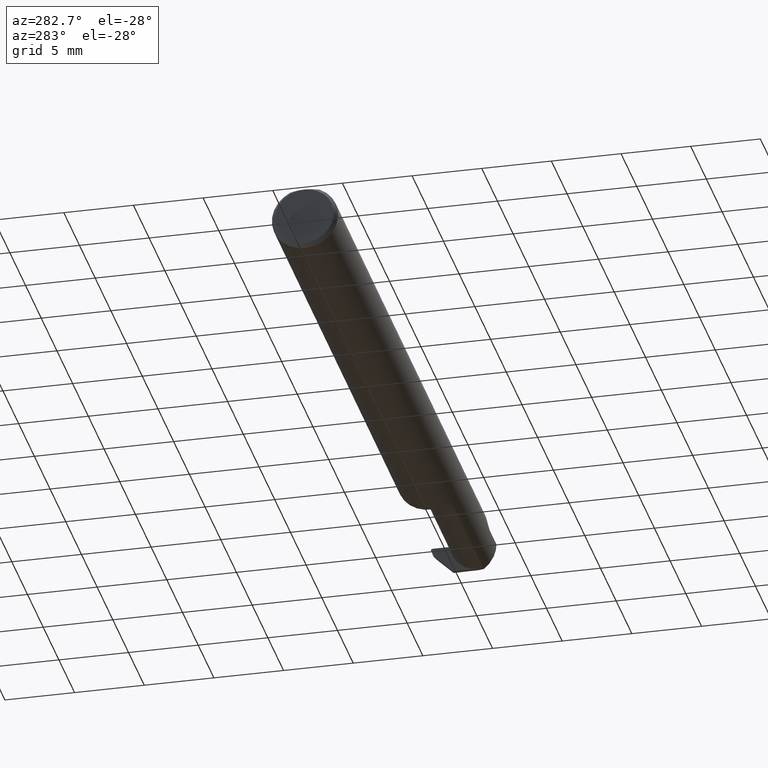
[diagram: clean part render]
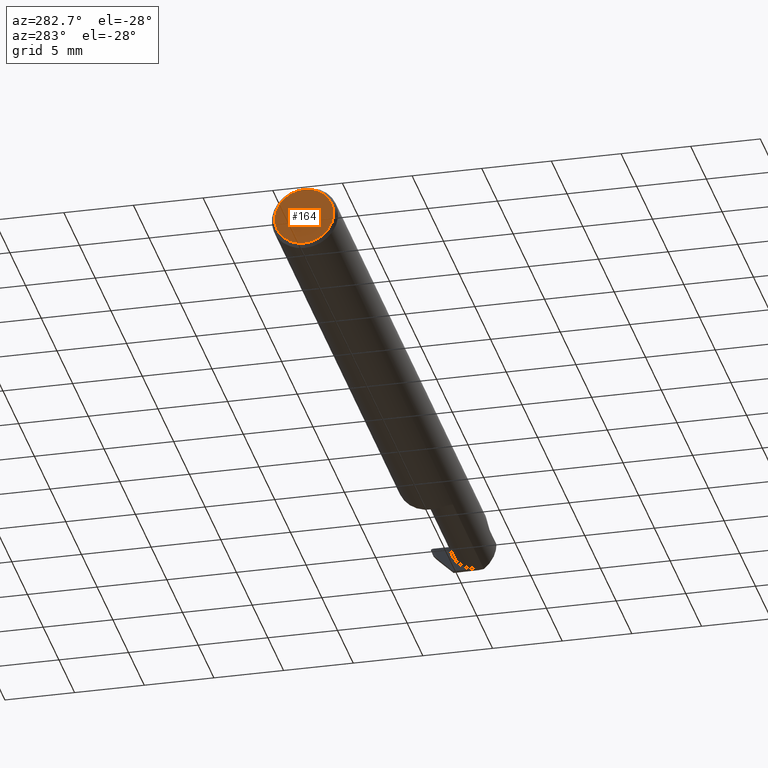
[diagram: same view with one face highlighted and labeled with its STEP entity id]
A machine part, auxiliary view. The second image highlights one B-rep face of the part: STEP entity #164.
In plain terms, the highlighted planar face has unit normal (1, 0, 0).
Its self-contained STEP definition (entity closure, byte-faithful):
#83 = DIRECTION ( 'NONE',  ( 0.000000000000000000, 0.000000000000000000, -1.000000000000000000 ) ) ;
#94 = DIRECTION ( 'NONE',  ( -1.000000000000000000, -0.000000000000000000, -0.000000000000000000 ) ) ;
#164 = ADVANCED_FACE ( 'NONE', ( #448 ), #507, .F. ) ;
#171 = AXIS2_PLACEMENT_3D ( 'NONE', #382, #693, #196 ) ;
#196 = DIRECTION ( 'NONE',  ( 0.000000000000000000, 0.000000000000000000, -1.000000000000000000 ) ) ;
#217 = CARTESIAN_POINT ( 'NONE',  ( 0.000000000000000000, 0.000000000000000000, 0.000000000000000000 ) ) ;
#288 = CARTESIAN_POINT ( 'NONE',  ( 0.000000000000000000, 0.000000000000000000, -0.08359999999999989662 ) ) ;
#289 = EDGE_LOOP ( 'NONE', ( #320, #627 ) ) ;
#304 = CARTESIAN_POINT ( 'NONE',  ( 0.000000000000000000, 0.000000000000000000, 0.08359999999999991049 ) ) ;
#320 = ORIENTED_EDGE ( 'NONE', *, *, #358, .T. ) ;
#358 = EDGE_CURVE ( 'NONE', #506, #365, #662, .T. ) ;
#365 = VERTEX_POINT ( 'NONE', #288 ) ;
#368 = CARTESIAN_POINT ( 'NONE',  ( 0.000000000000000000, 0.000000000000000000, 0.000000000000000000 ) ) ;
#382 = CARTESIAN_POINT ( 'NONE',  ( 0.000000000000000000, 0.000000000000000000, 0.000000000000000000 ) ) ;
#448 = FACE_OUTER_BOUND ( 'NONE', #289, .T. ) ;
#499 = AXIS2_PLACEMENT_3D ( 'NONE', #217, #94, #83 ) ;
#500 = CIRCLE ( 'NONE', #676, 0.08359999999999989662 ) ;
#506 = VERTEX_POINT ( 'NONE', #304 ) ;
#507 = PLANE ( 'NONE',  #171 ) ;
#572 = EDGE_CURVE ( 'NONE', #365, #506, #500, .T. ) ;
#608 = DIRECTION ( 'NONE',  ( 0.000000000000000000, 0.000000000000000000, -1.000000000000000000 ) ) ;
#627 = ORIENTED_EDGE ( 'NONE', *, *, #572, .T. ) ;
#662 = CIRCLE ( 'NONE', #499, 0.08359999999999989662 ) ;
#676 = AXIS2_PLACEMENT_3D ( 'NONE', #368, #726, #608 ) ;
#693 = DIRECTION ( 'NONE',  ( 1.000000000000000000, 0.000000000000000000, 0.000000000000000000 ) ) ;
#726 = DIRECTION ( 'NONE',  ( -1.000000000000000000, -0.000000000000000000, -0.000000000000000000 ) ) ;